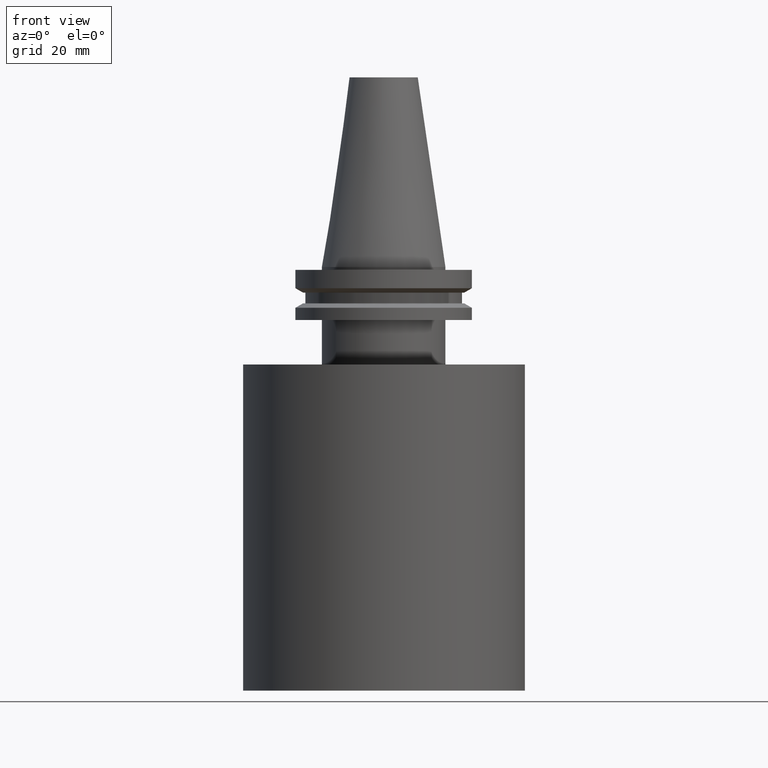
[diagram: clean part render]
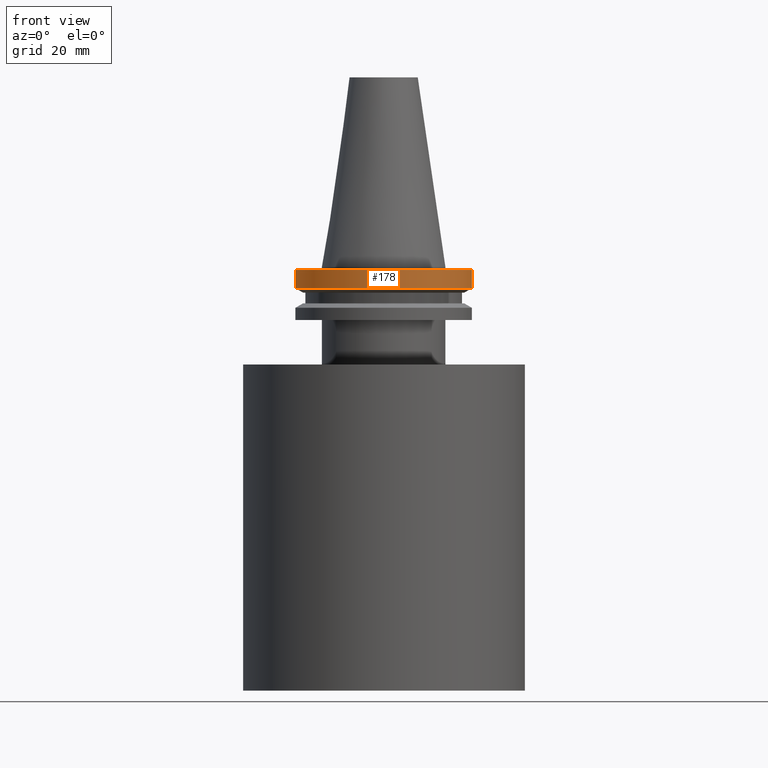
[diagram: same view with one face highlighted and labeled with its STEP entity id]
A machine part, front view. The second image highlights one B-rep face of the part: STEP entity #178.
In plain terms, the highlighted cylindrical surface (bore or boss wall) has radius 31.75 mm, axis along (-0, -0, 1).
Its self-contained STEP definition (entity closure, byte-faithful):
#5 = EDGE_LOOP ( 'NONE', ( #224 ) ) ;
#8 = VERTEX_POINT ( 'NONE', #105 ) ;
#16 = EDGE_CURVE ( 'NONE', #142, #142, #182, .T. ) ;
#18 = CYLINDRICAL_SURFACE ( 'NONE', #161, 31.75000000000000000 ) ;
#27 = ORIENTED_EDGE ( 'NONE', *, *, #16, .T. ) ;
#41 = DIRECTION ( 'NONE',  ( -0.000000000000000000, -0.000000000000000000, 1.000000000000000000 ) ) ;
#73 = DIRECTION ( 'NONE',  ( 1.000000000000000000, 0.000000000000000000, 0.000000000000000000 ) ) ;
#79 = FACE_OUTER_BOUND ( 'NONE', #121, .T. ) ;
#80 = AXIS2_PLACEMENT_3D ( 'NONE', #145, #210, #87 ) ;
#87 = DIRECTION ( 'NONE',  ( 1.000000000000000000, 0.000000000000000000, 0.000000000000000000 ) ) ;
#105 = CARTESIAN_POINT ( 'NONE',  ( 31.75000000000000000, 0.000000000000000000, -1.000000000000000888 ) ) ;
#109 = DIRECTION ( 'NONE',  ( -0.000000000000000000, -0.000000000000000000, 1.000000000000000000 ) ) ;
#121 = EDGE_LOOP ( 'NONE', ( #27 ) ) ;
#142 = VERTEX_POINT ( 'NONE', #359 ) ;
#143 = AXIS2_PLACEMENT_3D ( 'NONE', #374, #41, #337 ) ;
#145 = CARTESIAN_POINT ( 'NONE',  ( 0.000000000000000000, 0.000000000000000000, -1.000000000000000888 ) ) ;
#150 = CIRCLE ( 'NONE', #80, 31.75000000000000000 ) ;
#161 = AXIS2_PLACEMENT_3D ( 'NONE', #349, #109, #73 ) ;
#178 = ADVANCED_FACE ( 'NONE', ( #228, #79 ), #18, .T. ) ;
#182 = CIRCLE ( 'NONE', #143, 31.75000000000000000 ) ;
#210 = DIRECTION ( 'NONE',  ( -0.000000000000000000, -0.000000000000000000, 1.000000000000000000 ) ) ;
#224 = ORIENTED_EDGE ( 'NONE', *, *, #378, .F. ) ;
#228 = FACE_OUTER_BOUND ( 'NONE', #5, .T. ) ;
#337 = DIRECTION ( 'NONE',  ( 1.000000000000000000, 0.000000000000000000, 0.000000000000000000 ) ) ;
#349 = CARTESIAN_POINT ( 'NONE',  ( 0.000000000000000000, 0.000000000000000000, 68.25000000000000000 ) ) ;
#359 = CARTESIAN_POINT ( 'NONE',  ( 31.75000000000000000, 0.000000000000000000, -7.605276606597335842 ) ) ;
#374 = CARTESIAN_POINT ( 'NONE',  ( 0.000000000000000000, 0.000000000000000000, -7.605276606597335842 ) ) ;
#378 = EDGE_CURVE ( 'NONE', #8, #8, #150, .T. ) ;